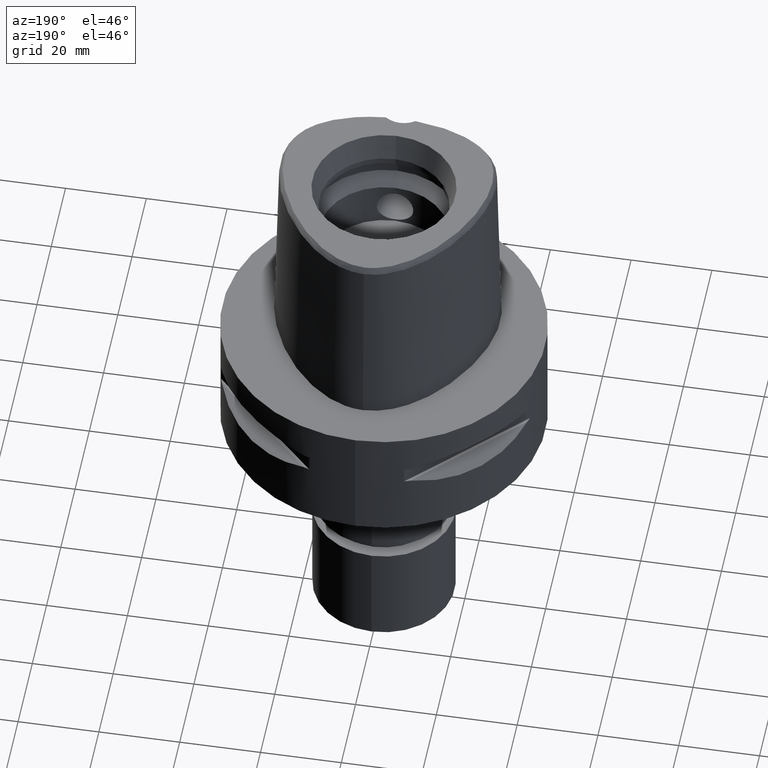
[diagram: clean part render]
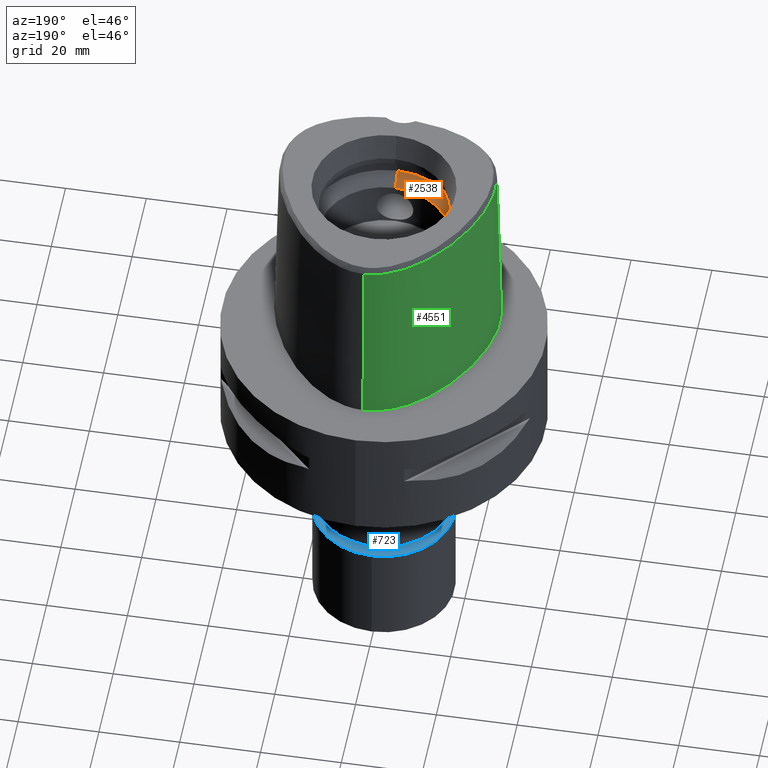
[diagram: same view with three faces highlighted in distinct colors, each labeled with its STEP entity id]
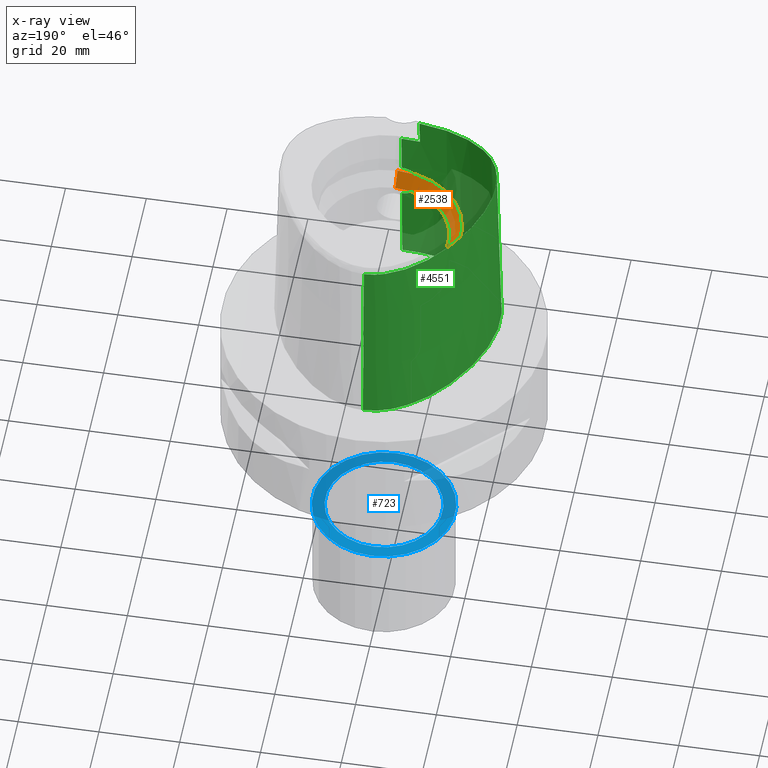
[diagram: x-ray of the same camera — body ghosted, the three highlighted faces saturated]
A machine part, auxiliary view with three faces highlighted in distinct colors.
The next image is the same camera in x-ray (body ghosted, the three faces saturated) — at least one of them is partly hidden behind the body in this view.
Their STEP definitions:

[orange] entity #2538 — the highlighted conical surface has half-angle 45 deg.
#25 = CIRCLE ( 'NONE', #4601, 16.00000000000000000 ) ;
#58 = EDGE_LOOP ( 'NONE', ( #1756, #4196, #2522, #1041 ) ) ;
#318 = VERTEX_POINT ( 'NONE', #4992 ) ;
#370 = VECTOR ( 'NONE', #5032, 1000.000000000000114 ) ;
#892 = LINE ( 'NONE', #3631, #3802 ) ;
#937 = EDGE_CURVE ( 'NONE', #2169, #4806, #25, .T. ) ;
#940 = CONICAL_SURFACE ( 'NONE', #3797, 17.50000000000000000, 0.7853981633972997312 ) ;
#1041 = ORIENTED_EDGE ( 'NONE', *, *, #2976, .F. ) ;
#1527 = DIRECTION ( 'NONE',  ( 0.0000000000000000000, 1.000000000000000000, 0.0000000000000000000 ) ) ;
#1726 = EDGE_CURVE ( 'NONE', #2169, #318, #2264, .T. ) ;
#1756 = ORIENTED_EDGE ( 'NONE', *, *, #937, .F. ) ;
#1982 = CARTESIAN_POINT ( 'NONE',  ( 0.0000000000000000000, 0.0000000000000000000, 31.50000000000000000 ) ) ;
#2108 = DIRECTION ( 'NONE',  ( 0.0000000000000000000, 0.0000000000000000000, -1.000000000000000000 ) ) ;
#2169 = VERTEX_POINT ( 'NONE', #4294 ) ;
#2264 = LINE ( 'NONE', #3142, #370 ) ;
#2522 = ORIENTED_EDGE ( 'NONE', *, *, #3392, .F. ) ;
#2538 = ADVANCED_FACE ( 'NONE', ( #4557 ), #940, .F. ) ;
#2599 = CARTESIAN_POINT ( 'NONE',  ( 0.0000000000000000000, -19.00000000000000000, 34.50000000000000000 ) ) ;
#2616 = CARTESIAN_POINT ( 'NONE',  ( 0.0000000000000000000, -16.00000000000000000, 31.50000000000000000 ) ) ;
#2631 = CIRCLE ( 'NONE', #3683, 19.00000000000000000 ) ;
#2645 = DIRECTION ( 'NONE',  ( 0.0000000000000000000, 0.0000000000000000000, 1.000000000000000000 ) ) ;
#2976 = EDGE_CURVE ( 'NONE', #4806, #3982, #892, .T. ) ;
#3142 = CARTESIAN_POINT ( 'NONE',  ( 0.0000000000000000000, 16.00000000000000000, 31.50000000000000000 ) ) ;
#3392 = EDGE_CURVE ( 'NONE', #3982, #318, #2631, .T. ) ;
#3412 = CARTESIAN_POINT ( 'NONE',  ( 0.0000000000000000000, 0.0000000000000000000, 33.00000000000000000 ) ) ;
#3559 = CARTESIAN_POINT ( 'NONE',  ( 0.0000000000000000000, 0.0000000000000000000, 34.50000000000000000 ) ) ;
#3631 = CARTESIAN_POINT ( 'NONE',  ( 0.0000000000000000000, -16.00000000000000000, 31.50000000000000000 ) ) ;
#3659 = DIRECTION ( 'NONE',  ( 0.0000000000000000000, -1.000000000000000000, 0.0000000000000000000 ) ) ;
#3683 = AXIS2_PLACEMENT_3D ( 'NONE', #3559, #2108, #3659 ) ;
#3797 = AXIS2_PLACEMENT_3D ( 'NONE', #3412, #2645, #4939 ) ;
#3802 = VECTOR ( 'NONE', #4709, 1000.000000000000114 ) ;
#3982 = VERTEX_POINT ( 'NONE', #2599 ) ;
#4196 = ORIENTED_EDGE ( 'NONE', *, *, #1726, .T. ) ;
#4294 = CARTESIAN_POINT ( 'NONE',  ( 0.0000000000000000000, 16.00000000000000000, 31.50000000000000000 ) ) ;
#4557 = FACE_OUTER_BOUND ( 'NONE', #58, .T. ) ;
#4601 = AXIS2_PLACEMENT_3D ( 'NONE', #1982, #5047, #1527 ) ;
#4709 = DIRECTION ( 'NONE',  ( 0.0000000000000000000, -0.7071067811865474617, 0.7071067811865474617 ) ) ;
#4806 = VERTEX_POINT ( 'NONE', #2616 ) ;
#4939 = DIRECTION ( 'NONE',  ( 0.0000000000000000000, 1.000000000000000000, 0.0000000000000000000 ) ) ;
#4992 = CARTESIAN_POINT ( 'NONE',  ( 0.0000000000000000000, 19.00000000000000000, 34.50000000000000000 ) ) ;
#5032 = DIRECTION ( 'NONE',  ( 0.0000000000000000000, 0.7071067811865474617, 0.7071067811865474617 ) ) ;
#5047 = DIRECTION ( 'NONE',  ( 0.0000000000000000000, 0.0000000000000000000, 1.000000000000000000 ) ) ;

[blue] entity #723 — the highlighted planar face has unit normal (0, 0, -1).
#50 = CARTESIAN_POINT ( 'NONE',  ( 0.0000000000000000000, 14.50000000000000000, 0.0000000000000000000 ) ) ;
#143 = CARTESIAN_POINT ( 'NONE',  ( 0.0000000000000000000, -14.50000000000000000, 0.0000000000000000000 ) ) ;
#276 = DIRECTION ( 'NONE',  ( 0.0000000000000000000, 0.0000000000000000000, -1.000000000000000000 ) ) ;
#510 = EDGE_CURVE ( 'NONE', #3402, #3735, #3394, .T. ) ;
#604 = ORIENTED_EDGE ( 'NONE', *, *, #1532, .F. ) ;
#723 = ADVANCED_FACE ( 'NONE', ( #2535, #4012 ), #2914, .F. ) ;
#841 = EDGE_CURVE ( 'NONE', #3735, #3402, #1427, .T. ) ;
#999 = DIRECTION ( 'NONE',  ( 0.0000000000000000000, 1.000000000000000000, 0.0000000000000000000 ) ) ;
#1043 = EDGE_CURVE ( 'NONE', #1404, #4744, #3888, .T. ) ;
#1404 = VERTEX_POINT ( 'NONE', #2602 ) ;
#1427 = CIRCLE ( 'NONE', #2899, 14.50000000000000000 ) ;
#1532 = EDGE_CURVE ( 'NONE', #4744, #1404, #1602, .T. ) ;
#1584 = DIRECTION ( 'NONE',  ( 0.0000000000000000000, -1.000000000000000000, 0.0000000000000000000 ) ) ;
#1602 = CIRCLE ( 'NONE', #3074, 17.64999999999999858 ) ;
#1613 = DIRECTION ( 'NONE',  ( 0.0000000000000000000, 0.0000000000000000000, 1.000000000000000000 ) ) ;
#1665 = CARTESIAN_POINT ( 'NONE',  ( 0.0000000000000000000, 0.0000000000000000000, 0.0000000000000000000 ) ) ;
#2041 = EDGE_LOOP ( 'NONE', ( #3639, #3674 ) ) ;
#2134 = CARTESIAN_POINT ( 'NONE',  ( 0.0000000000000000000, 0.0000000000000000000, 0.0000000000000000000 ) ) ;
#2315 = CARTESIAN_POINT ( 'NONE',  ( 0.0000000000000000000, 0.0000000000000000000, 0.0000000000000000000 ) ) ;
#2361 = CARTESIAN_POINT ( 'NONE',  ( 0.0000000000000000000, 17.64999999999999858, 0.0000000000000000000 ) ) ;
#2535 = FACE_OUTER_BOUND ( 'NONE', #3265, .T. ) ;
#2573 = ORIENTED_EDGE ( 'NONE', *, *, #1043, .F. ) ;
#2602 = CARTESIAN_POINT ( 'NONE',  ( 0.0000000000000000000, -17.64999999999999858, 0.0000000000000000000 ) ) ;
#2757 = DIRECTION ( 'NONE',  ( 0.0000000000000000000, 1.000000000000000000, 0.0000000000000000000 ) ) ;
#2899 = AXIS2_PLACEMENT_3D ( 'NONE', #3828, #3543, #2757 ) ;
#2914 = PLANE ( 'NONE',  #3227 ) ;
#3074 = AXIS2_PLACEMENT_3D ( 'NONE', #2134, #276, #999 ) ;
#3227 = AXIS2_PLACEMENT_3D ( 'NONE', #1665, #3656, #4787 ) ;
#3265 = EDGE_LOOP ( 'NONE', ( #604, #2573 ) ) ;
#3394 = CIRCLE ( 'NONE', #4915, 14.50000000000000000 ) ;
#3402 = VERTEX_POINT ( 'NONE', #143 ) ;
#3543 = DIRECTION ( 'NONE',  ( 0.0000000000000000000, 0.0000000000000000000, 1.000000000000000000 ) ) ;
#3639 = ORIENTED_EDGE ( 'NONE', *, *, #841, .F. ) ;
#3656 = DIRECTION ( 'NONE',  ( 0.0000000000000000000, 0.0000000000000000000, -1.000000000000000000 ) ) ;
#3674 = ORIENTED_EDGE ( 'NONE', *, *, #510, .F. ) ;
#3735 = VERTEX_POINT ( 'NONE', #50 ) ;
#3828 = CARTESIAN_POINT ( 'NONE',  ( 0.0000000000000000000, 0.0000000000000000000, 0.0000000000000000000 ) ) ;
#3888 = CIRCLE ( 'NONE', #4766, 17.64999999999999858 ) ;
#4012 = FACE_BOUND ( 'NONE', #2041, .T. ) ;
#4341 = DIRECTION ( 'NONE',  ( 0.0000000000000000000, 0.0000000000000000000, -1.000000000000000000 ) ) ;
#4698 = CARTESIAN_POINT ( 'NONE',  ( 0.0000000000000000000, 0.0000000000000000000, 0.0000000000000000000 ) ) ;
#4723 = DIRECTION ( 'NONE',  ( 0.0000000000000000000, -1.000000000000000000, 0.0000000000000000000 ) ) ;
#4744 = VERTEX_POINT ( 'NONE', #2361 ) ;
#4766 = AXIS2_PLACEMENT_3D ( 'NONE', #4698, #4341, #4723 ) ;
#4787 = DIRECTION ( 'NONE',  ( 0.0000000000000000000, -1.000000000000000000, 0.0000000000000000000 ) ) ;
#4915 = AXIS2_PLACEMENT_3D ( 'NONE', #2315, #1613, #1584 ) ;

[green] entity #4551 — the highlighted face is a freeform B-spline surface patch.
#37 = CARTESIAN_POINT ( 'NONE',  ( -1.722296434335556459, -24.81387508079694371, 29.21144792399117307 ) ) ;
#43 = CARTESIAN_POINT ( 'NONE',  ( -0.6821018004462000572, 28.41983321146999941, 47.45113844606000697 ) ) ;
#66 = CARTESIAN_POINT ( 'NONE',  ( -0.7039271474416999297, 28.82397290343000051, 31.32395413760000125 ) ) ;
#83 = CARTESIAN_POINT ( 'NONE',  ( -3.205390121191868058, -24.76204090357538945, 28.22925085367149123 ) ) ;
#86 = CARTESIAN_POINT ( 'NONE',  ( -26.38518529508765553, -1.941591755871336256, 46.52070903171014749 ) ) ;
#90 = CARTESIAN_POINT ( 'NONE',  ( -27.87808443105999601, -5.337383714067000184, -0.9304144793345000553 ) ) ;
#117 = CARTESIAN_POINT ( 'NONE',  ( -26.66520868297000035, -5.367805582596999692, 47.45113844606000697 ) ) ;
#162 = CARTESIAN_POINT ( 'NONE',  ( -1.888484788635112821, -25.01654759054914834, 20.86028587658107014 ) ) ;
#164 = CARTESIAN_POINT ( 'NONE',  ( -0.9629684636075657167, 28.41206041874228561, 46.52070903171014749 ) ) ;
#168 = CARTESIAN_POINT ( 'NONE',  ( -6.695047936513000231, -25.26858194627000032, -0.9304144793345000553 ) ) ;
#188 = CARTESIAN_POINT ( 'NONE',  ( -4.212409792926641749, -24.80756021599265893, 23.28005703556032202 ) ) ;
#214 = CARTESIAN_POINT ( 'NONE',  ( -3.900686180406077508, -24.73222278675475039, 27.34720371156312879 ) ) ;
#221 = CARTESIAN_POINT ( 'NONE',  ( -11.64093423979000086, -23.76831843700999869, 15.19676982913000174 ) ) ;
#236 = CARTESIAN_POINT ( 'NONE',  ( -4.201380620708010660, -24.72153596869751624, 26.74670933510338244 ) ) ;
#243 = CARTESIAN_POINT ( 'NONE',  ( -26.73375370627000081, -11.30662581566000036, 15.19676982913000174 ) ) ;
#254 = CARTESIAN_POINT ( 'NONE',  ( -24.77458489266242836, -16.12173825018081885, 2.094819869652431166E-06 ) ) ;
#268 = CARTESIAN_POINT ( 'NONE',  ( -3.994669282579147662, -24.83794919743794694, 22.82040209576782530 ) ) ;
#274 = CARTESIAN_POINT ( 'NONE',  ( -22.86810881909999793, -17.21714036338000042, 31.32395413760000125 ) ) ;
#356 = CARTESIAN_POINT ( 'NONE',  ( -5.572548441001623942, -24.09475885057824129, 46.52070903171014749 ) ) ;
#437 = CARTESIAN_POINT ( 'NONE',  ( -9.105791465399001083, 26.46675914463000012, 15.19676982913000174 ) ) ;
#446 = CARTESIAN_POINT ( 'NONE',  ( -1.192047609672000055E-11, 28.41206021534999593, 46.52071719450999154 ) ) ;
#455 = CARTESIAN_POINT ( 'NONE',  ( -1.150414049180625620, -24.82628098737378153, 29.40485804970413852 ) ) ;
#466 = CARTESIAN_POINT ( 'NONE',  ( -4.851912750261540134E-09, -24.66214466420160178, 36.51666702990944913 ) ) ;
#479 = CARTESIAN_POINT ( 'NONE',  ( -22.59428085107230189, -16.95173346410183868, 46.52070903171014749 ) ) ;
#484 = CARTESIAN_POINT ( 'NONE',  ( -16.83227270575000389, 18.76477912984999818, 47.45113844606000697 ) ) ;
#513 = CARTESIAN_POINT ( 'NONE',  ( -27.06950059899999772, -5.357664959754000478, 31.32395413760000125 ) ) ;
#533 = CARTESIAN_POINT ( 'NONE',  ( -1.611811031578928910, -24.81663505490543997, 29.25526689574252259 ) ) ;
#538 = CARTESIAN_POINT ( 'NONE',  ( 0.5902542486776999331, 29.18556700309000007, 15.19676982913000174 ) ) ;
#554 = CARTESIAN_POINT ( 'NONE',  ( -3.972636365745899401, -24.72937778087138128, 27.22257177644721082 ) ) ;
#555 = CARTESIAN_POINT ( 'NONE',  ( -21.32746397970085184, 12.31340991043660615, 46.52070903171014749 ) ) ;
#559 = CARTESIAN_POINT ( 'NONE',  ( -2.354156828567999682, -24.81494221266999745, 31.32395413760000125 ) ) ;
#561 = CARTESIAN_POINT ( 'NONE',  ( 1.372734075386999954E-14, -24.83629963747999980, 29.55000000000000071 ) ) ;
#573 = CARTESIAN_POINT ( 'NONE',  ( -4.515545264917624202, -24.72200876241189249, 25.57765437788227203 ) ) ;
#578 = CARTESIAN_POINT ( 'NONE',  ( -27.12297207986999936, -11.41745865541999905, -0.9304144793345000553 ) ) ;
#600 = CARTESIAN_POINT ( 'NONE',  ( -4.304263127651236864, -24.79330400446726657, 23.52125164125747503 ) ) ;
#628 = CARTESIAN_POINT ( 'NONE',  ( -3.265305598819550514, -24.91820214815111711, 21.83126415608266768 ) ) ;
#630 = CARTESIAN_POINT ( 'NONE',  ( -4.472216406693000579, -24.20008985674000357, 46.52070903171000538 ) ) ;
#634 = CARTESIAN_POINT ( 'NONE',  ( 0.8392169872707000433, -24.78463084240999947, 31.32395413760000125 ) ) ;
#636 = LINE ( 'NONE', #4936, #1689 ) ;
#642 = CARTESIAN_POINT ( 'NONE',  ( -26.34912732414720082, -13.39455076017427793, 2.094819869652431166E-06 ) ) ;
#650 = CARTESIAN_POINT ( 'NONE',  ( -3.310528231614960681, -24.91386642802240203, 21.87824841565021217 ) ) ;
#657 = CARTESIAN_POINT ( 'NONE',  ( -26.50159628496000153, -8.602222732056999277, 47.45113844606000697 ) ) ;
#665 = B_SPLINE_CURVE_WITH_KNOTS ( 'NONE', 3,
 ( #737, #356, #1920, #3486, #5014, #918, #4056, #479, #3603, #970, #2047, #2151, #3198, #1737, #86, #2818, #3295, #555, #2126, #4835, #4738, #4426, #4375, #164, #1329 ),
 .UNSPECIFIED., .F., .F.,
 ( 4, 1, 1, 1, 1, 1, 1, 1, 1, 1, 1, 1, 1, 1, 1, 1, 1, 1, 1, 1, 1, 1, 4 ),
 ( 0.0000000000000000000, 0.03735859270278889949, 0.08111502030725048495, 0.1248714479116071335, 0.1686278755159637821, 0.2123843031204253606, 0.2561407307247819953, 0.2780189445269604098, 0.2998971583291386578, 0.3217753721314219884, 0.3436535859336003473, 0.3874100135379570098, 0.4311664411423136722, 0.4749228687466702792, 0.5186792963511318577, 0.5624357239554885757, 0.6499485791643069277, 0.7374614343730200305, 0.8249742895818383825, 0.8687307171861949895, 0.9124871447906146571, 0.9562435723950027944, 1.000000000000000000 ),
 .UNSPECIFIED. ) ;
#697 = EDGE_CURVE ( 'NONE', #3267, #1176, #665, .T. ) ;
#737 = CARTESIAN_POINT ( 'NONE',  ( -4.472216406693000579, -24.20008985674000357, 46.52070903171000538 ) ) ;
#743 = CARTESIAN_POINT ( 'NONE',  ( -1.192047609672000055E-11, 28.41206021534999593, 46.52071719450999154 ) ) ;
#749 = CARTESIAN_POINT ( 'NONE',  ( -4.602965076336000827, -24.35127131300999892, 40.00000000000000000 ) ) ;
#805 = CARTESIAN_POINT ( 'NONE',  ( -4.560196949595972882, -24.30012304335829398, 42.17356967723666372 ) ) ;
#811 = CARTESIAN_POINT ( 'NONE',  ( -2.404910036726957134, -24.79321437770926551, 28.86288751849653167 ) ) ;
#836 = CARTESIAN_POINT ( 'NONE',  ( -2.520279592225764365, -24.78912363236073091, 28.78824203054437447 ) ) ;
#843 = CARTESIAN_POINT ( 'NONE',  ( -21.65785138254999964, 12.50416150512999991, 31.32395413760000125 ) ) ;
#867 = CARTESIAN_POINT ( 'NONE',  ( -1.984502176493348591, -24.80676203802943292, 29.09712838305476978 ) ) ;
#889 = CARTESIAN_POINT ( 'NONE',  ( -2.352923008994420417, -24.79499099983765475, 28.89459205334127390 ) ) ;
#894 = CARTESIAN_POINT ( 'NONE',  ( -24.10679983690999961, 6.379205539831000138, 47.45113844606000697 ) ) ;
#895 = ORIENTED_EDGE ( 'NONE', *, *, #3915, .F. ) ;
#918 = CARTESIAN_POINT ( 'NONE',  ( -17.99241701171345298, -20.42933791837108615, 46.52070903171014749 ) ) ;
#945 = CARTESIAN_POINT ( 'NONE',  ( -2.224291573387941590, -24.99814500580177778, 21.02832322413054555 ) ) ;
#969 = CARTESIAN_POINT ( 'NONE',  ( -2.039991806424828358, -25.00858519317915452, 20.93235562228259994 ) ) ;
#970 = CARTESIAN_POINT ( 'NONE',  ( -24.62887906780445135, -14.21948995895579948, 46.52070903171014749 ) ) ;
#973 = CARTESIAN_POINT ( 'NONE',  ( 0.5595577616574000102, -24.78951189190999926, 31.32395413760000125 ) ) ;
#989 = CARTESIAN_POINT ( 'NONE',  ( -3.797137772289171487, -24.86229941254662279, 22.49313827486259854 ) ) ;
#996 = CARTESIAN_POINT ( 'NONE',  ( -11.74634101485999871, -24.15815461099999695, -0.9304144793345000553 ) ) ;
#1016 = CARTESIAN_POINT ( 'NONE',  ( -3.245740051672679094, -24.92006245179830159, 21.81130774429478691 ) ) ;
#1023 = CARTESIAN_POINT ( 'NONE',  ( -18.36798846916000016, -21.11924012296000086, 15.19676982913000174 ) ) ;
#1031 = CARTESIAN_POINT ( 'NONE',  ( -13.21796077085598853, 24.04386714781985290, 2.094819869652431166E-06 ) ) ;
#1045 = CARTESIAN_POINT ( 'NONE',  ( -4.198926685529646541, -24.72160612811942570, 26.75259212959132782 ) ) ;
#1051 = CARTESIAN_POINT ( 'NONE',  ( -22.57751558785000157, -16.93548378530000065, 47.45113844606000697 ) ) ;
#1054 = CARTESIAN_POINT ( 'NONE',  ( -2.392065149245000541E-12, -25.06378435148999984, 20.44999999999999929 ) ) ;
#1076 = CARTESIAN_POINT ( 'NONE',  ( -2.393548608051999871, -25.62160468843000061, -0.9304144793345000553 ) ) ;
#1085 = CARTESIAN_POINT ( 'NONE',  ( -22.33885461213397861, 12.89734372370515914, 2.094819869652431166E-06 ) ) ;
#1160 = CARTESIAN_POINT ( 'NONE',  ( -21.42129056182097457, -19.59889644248153218, 2.094819869652431166E-06 ) ) ;
#1174 = CARTESIAN_POINT ( 'NONE',  ( -2.392065149245000541E-12, -25.06378435148999984, 20.44999999999999929 ) ) ;
#1176 = VERTEX_POINT ( 'NONE', #446 ) ;
#1186 = CARTESIAN_POINT ( 'NONE',  ( -11.74025984106811649, -24.13566401186329102, 2.094819869652431166E-06 ) ) ;
#1207 = CARTESIAN_POINT ( 'NONE',  ( -2.249867388151588266, -24.79844751147266990, 28.95562542824130503 ) ) ;
#1229 = CARTESIAN_POINT ( 'NONE',  ( -2.492689275654131009, -24.79011428768476932, 28.80645659143012693 ) ) ;
#1235 = CARTESIAN_POINT ( 'NONE',  ( -17.77103258632999783, 19.53703864451000172, -0.9304144793345000553 ) ) ;
#1255 = CARTESIAN_POINT ( 'NONE',  ( -3.172181247291940398, -24.76348918694393930, 28.26195868750457763 ) ) ;
#1261 = CARTESIAN_POINT ( 'NONE',  ( -21.30723583494999929, 12.30173104243000104, 47.45113844606000697 ) ) ;
#1283 = CARTESIAN_POINT ( 'NONE',  ( -1.676286854296210382, -24.81504355059169953, 29.23004141242361342 ) ) ;
#1290 = CARTESIAN_POINT ( 'NONE',  ( -26.79474625778999908, 1.906447387348999989, -0.9304144793345000553 ) ) ;
#1310 = CARTESIAN_POINT ( 'NONE',  ( 0.5727458549745999550, 28.78269979246000077, 31.32395413760000125 ) ) ;
#1327 = CARTESIAN_POINT ( 'NONE',  ( -2.349040166744138070, -24.99044712210573138, 21.10040994412159066 ) ) ;
#1329 = CARTESIAN_POINT ( 'NONE',  ( -1.192047609672000055E-11, 28.41206021534999593, 46.52071719450999154 ) ) ;
#1334 = CARTESIAN_POINT ( 'NONE',  ( -25.23075706188000211, 6.836210430591999732, -0.9304144793345000553 ) ) ;
#1355 = CARTESIAN_POINT ( 'NONE',  ( -1.754298049354609867, -25.02308377135079098, 20.80178576367026722 ) ) ;
#1361 = CARTESIAN_POINT ( 'NONE',  ( -24.14246365494000202, -15.65707285667999926, 31.32395413760000125 ) ) ;
#1369 = CARTESIAN_POINT ( 'NONE',  ( -17.75297947105729790, 19.52218746656008719, 2.094819869652431166E-06 ) ) ;
#1377 = CARTESIAN_POINT ( 'NONE',  ( -1.165430911967659577, -25.05044697737377746, 20.55812161079838418 ) ) ;
#1382 = CARTESIAN_POINT ( 'NONE',  ( -20.94550185134000131, -18.97246394888000154, 31.32395413760000125 ) ) ;
#1400 = CARTESIAN_POINT ( 'NONE',  ( -3.702709904148360209, -24.87336589807969744, 22.35148037005134114 ) ) ;
#1406 = CARTESIAN_POINT ( 'NONE',  ( -2.334460938825000387, -24.41161097479999853, 47.45113844606000697 ) ) ;
#1407 = CARTESIAN_POINT ( 'NONE',  ( -4.602965076336000827, -24.35127131300999892, 40.00000000000000000 ) ) ;
#1416 = CARTESIAN_POINT ( 'NONE',  ( -3.149084863199506756, 29.34015619852094048, 2.094819869652431166E-06 ) ) ;
#1426 = CARTESIAN_POINT ( 'NONE',  ( -4.256460948041315362, -24.80084657812260218, 23.39133378591558809 ) ) ;
#1433 = CARTESIAN_POINT ( 'NONE',  ( -26.37046814545999851, -13.40391019821999841, -0.9304144793345000553 ) ) ;
#1460 = CARTESIAN_POINT ( 'NONE',  ( -25.26074793572000132, -12.91722051562000040, 47.45113844606000697 ) ) ;
#1461 = B_SPLINE_CURVE_WITH_KNOTS ( 'NONE', 3,
 ( #3645, #466, #1648, #3209 ),
 .UNSPECIFIED., .F., .F.,
 ( 4, 4 ),
 ( 0.0000000000000000000, 1.000000000000000000 ),
 .UNSPECIFIED. ) ;
#1506 = ORIENTED_EDGE ( 'NONE', *, *, #1662, .F. ) ;
#1539 = CARTESIAN_POINT ( 'NONE',  ( -1.924424295540000113E-11, -25.57499999999999929, 1.155372094292999947E-13 ) ) ;
#1617 = CARTESIAN_POINT ( 'NONE',  ( -9.316733117299998312, 26.81182150644999851, -0.9304144793345000553 ) ) ;
#1618 = VERTEX_POINT ( 'NONE', #561 ) ;
#1631 = VERTEX_POINT ( 'NONE', #1407 ) ;
#1634 = CARTESIAN_POINT ( 'NONE',  ( -3.125212091966714567, -24.76551320166746706, 28.30726214217371961 ) ) ;
#1640 = CARTESIAN_POINT ( 'NONE',  ( -26.01411826807999716, 1.699187959254000013, 31.32395413760000125 ) ) ;
#1648 = CARTESIAN_POINT ( 'NONE',  ( -4.860711517212901788E-09, -24.74922215084347243, 33.03333351495476222 ) ) ;
#1662 = EDGE_CURVE ( 'NONE', #4830, #2564, #636, .T. ) ;
#1663 = CARTESIAN_POINT ( 'NONE',  ( -3.211065830876046245, -24.76179211193617746, 28.22361125334782628 ) ) ;
#1669 = CARTESIAN_POINT ( 'NONE',  ( -27.47379251503000219, -5.347524336910000287, 15.19676982913000174 ) ) ;
#1689 = VECTOR ( 'NONE', #4062, 1000.000000000000000 ) ;
#1719 = CARTESIAN_POINT ( 'NONE',  ( -2.892852102124000346, 28.17405737570999946, 47.45113844606000697 ) ) ;
#1735 = CARTESIAN_POINT ( 'NONE',  ( -1.843442154717177539, -25.01881181296639411, 20.83994273181361834 ) ) ;
#1737 = CARTESIAN_POINT ( 'NONE',  ( -26.68853359099258782, -5.367220537272750391, 46.52070903171014749 ) ) ;
#1741 = CARTESIAN_POINT ( 'NONE',  ( -21.19046239193000147, -19.29498367012000415, 15.19676982913000174 ) ) ;
#1759 = CARTESIAN_POINT ( 'NONE',  ( -3.459328791567589878, -24.75086403572737126, 27.97515479135392980 ) ) ;
#1780 = B_SPLINE_CURVE_WITH_KNOTS ( 'NONE', 3,
 ( #2373, #2703, #1932, #749 ),
 .UNSPECIFIED., .F., .F.,
 ( 4, 4 ),
 ( 0.0000000000000000000, 1.000000000000000000 ),
 .UNSPECIFIED. ) ;
#1783 = CARTESIAN_POINT ( 'NONE',  ( -4.544092989177466180, -24.72741046393034026, 25.25074796833678548 ) ) ;
#1789 = CARTESIAN_POINT ( 'NONE',  ( -20.70054131075000114, -18.64994422763999893, 47.45113844606000697 ) ) ;
#1797 = CARTESIAN_POINT ( 'NONE',  ( 4.354908547475000121E-11, 29.57499999998999840, 1.090979158864999866E-13 ) ) ;
#1807 = CARTESIAN_POINT ( 'NONE',  ( -4.409270466778648867, -24.71744676443887556, 26.16158622814597123 ) ) ;
#1814 = CARTESIAN_POINT ( 'NONE',  ( -25.30843714803000211, -14.61183299997000162, 15.19676982913000174 ) ) ;
#1823 = CARTESIAN_POINT ( 'NONE',  ( -23.43253024973375176, -17.76420406497843274, 2.094819869652431166E-06 ) ) ;
#1833 = CARTESIAN_POINT ( 'NONE',  ( -2.978031838724320757, -24.94531787462517869, 21.54303487591699096 ) ) ;
#1839 = CARTESIAN_POINT ( 'NONE',  ( -14.86558287166999826, -21.85772792644999640, 47.45113844606000697 ) ) ;
#1920 = CARTESIAN_POINT ( 'NONE',  ( -7.937300651753801617, -23.78071178104227457, 46.52070903171014749 ) ) ;
#1932 = CARTESIAN_POINT ( 'NONE',  ( -3.083106526351037324, -24.50056604430952234, 40.00000010702065367 ) ) ;
#1949 = CARTESIAN_POINT ( 'NONE',  ( -6.691850456626842636, -25.24546869795837267, 2.094819869652431166E-06 ) ) ;
#1978 = EDGE_CURVE ( 'NONE', #1618, #4830, #2289, .T. ) ;
#1984 = CARTESIAN_POINT ( 'NONE',  ( -4.472216406693000579, -24.20008985674000357, 46.52070903171000538 ) ) ;
#1990 = CARTESIAN_POINT ( 'NONE',  ( -1.003044292495311574, -24.82866638025622308, 29.44055839642713579 ) ) ;
#1996 = CARTESIAN_POINT ( 'NONE',  ( -12.96695409940000054, 23.75598709824999588, 15.19676982913000174 ) ) ;
#2025 = CARTESIAN_POINT ( 'NONE',  ( -2.979937750256000051, 28.57037856175000101, 31.32395413760000125 ) ) ;
#2047 = CARTESIAN_POINT ( 'NONE',  ( -25.28208905154637876, -12.92658008283046200, 46.52070903171014749 ) ) ;
#2052 = CARTESIAN_POINT ( 'NONE',  ( -26.76156705504000044, -1.884109320324999892, 31.32395413760000125 ) ) ;
#2069 = ORIENTED_EDGE ( 'NONE', *, *, #697, .T. ) ;
#2081 = CARTESIAN_POINT ( 'NONE',  ( -24.85610465356000276, 6.683875467004999571, 15.19676982913000174 ) ) ;
#2103 = CARTESIAN_POINT ( 'NONE',  ( -1.858668925437444885, -24.81033890557711530, 29.15501574767494475 ) ) ;
#2109 = CARTESIAN_POINT ( 'NONE',  ( -12.43420517227000133, 23.14497629658000122, 47.45113844606000697 ) ) ;
#2124 = CARTESIAN_POINT ( 'NONE',  ( -4.550009659928393901, -24.73228693208369222, 25.03285394944880338 ) ) ;
#2126 = CARTESIAN_POINT ( 'NONE',  ( -16.85032607016435691, 18.77963051275330031, 46.52070903171014749 ) ) ;
#2130 = CARTESIAN_POINT ( 'NONE',  ( -15.30623779601999956, -22.98697010193000168, -0.9304144793345000553 ) ) ;
#2141 = EDGE_CURVE ( 'NONE', #3267, #1631, #4042, .T. ) ;
#2150 = CARTESIAN_POINT ( 'NONE',  ( -4.192714366872920095, -24.72178541175452793, 26.76740225217007563 ) ) ;
#2151 = CARTESIAN_POINT ( 'NONE',  ( -25.97777222568544175, -11.09135444108358648, 46.52070903171014749 ) ) ;
#2157 = CARTESIAN_POINT ( 'NONE',  ( 0.5548736449244000557, -24.38637835827999822, 47.45113844606000697 ) ) ;
#2164 = CARTESIAN_POINT ( 'NONE',  ( -25.20914245119653074, 6.827421855213088087, 2.094819869652431166E-06 ) ) ;
#2176 = CARTESIAN_POINT ( 'NONE',  ( -3.864901861996108412, -24.85421915751040345, 22.59833191710548661 ) ) ;
#2201 = CARTESIAN_POINT ( 'NONE',  ( -3.957281473797835236, -24.84276546235788174, 22.75305380327887406 ) ) ;
#2222 = ORIENTED_EDGE ( 'NONE', *, *, #4421, .T. ) ;
#2226 = CARTESIAN_POINT ( 'NONE',  ( -4.547910621292599487, -24.72974527037217740, 25.14250056300025093 ) ) ;
#2232 = CARTESIAN_POINT ( 'NONE',  ( -24.46791223473999821, -15.89630654061999948, 15.19676982913000174 ) ) ;
#2261 = CARTESIAN_POINT ( 'NONE',  ( 4.354908547475000121E-11, 29.57499999998999840, 1.090979158864999866E-13 ) ) ;
#2272 = CARTESIAN_POINT ( 'NONE',  ( -27.68378748623397811, -8.751933587140674931, 2.094819869652431166E-06 ) ) ;
#2289 = B_SPLINE_CURVE_WITH_KNOTS ( 'NONE', 3,
 ( #2386, #2843, #4034, #1990, #455, #4706, #4324, #533, #1283, #3168, #37, #3271, #2103, #867, #4373, #1207, #889, #811, #2767, #1229, #2790, #836, #2413, #4735, #3579, #2466, #1634, #1255, #2815, #83, #1663, #1759, #4424, #214, #554, #4470, #4099, #3727, #4522, #4901, #2150, #1045, #236, #4854, #1807, #2517, #573, #2557, #1783, #2226, #4054, #2124, #2534, #3343, #3701, #2886, #3370, #600, #1426, #2585, #3320, #188, #2934, #3749, #3774, #268, #2201, #2911, #2176, #4875, #2985, #989, #2608, #1400, #2958, #4495, #4146, #650, #628, #1016, #3677, #4123, #1833, #4808, #1327, #945, #969, #4072, #162, #1735, #3293, #4833, #1355, #4451, #1377, #4170, #1174 ),
 .UNSPECIFIED., .F., .F.,
 ( 4, 2, 2, 1, 1, 1, 2, 2, 2, 2, 1, 1, 2, 2, 2, 1, 1, 1, 2, 2, 2, 2, 2, 1, 1, 2, 2, 2, 2, 1, 2, 2, 2, 2, 1, 1, 1, 2, 2, 2, 2, 1, 1, 2, 2, 2, 1, 1, 1, 2, 2, 2, 2, 2, 1, 1, 2, 2, 4 ),
 ( 0.0000000000000000000, 0.06249999999999783507, 0.09374999999999675260, 0.1093749999999962114, 0.1171874999999958228, 0.1210937499999954897, 0.1230468749999953232, 0.1249999999999951567, 0.1562499999999918954, 0.1718749999999902855, 0.1796874999999894806, 0.1835937499999890643, 0.1855468749999890088, 0.1874999999999889810, 0.2187499999999906186, 0.2343749999999914513, 0.2421874999999918121, 0.2460937499999920064, 0.2480468749999917843, 0.2499999999999916178, 0.3124999999999886757, 0.3437499999999875655, 0.3593749999999869549, 0.3671874999999870659, 0.3710937499999867328, 0.3730468749999870104, 0.3749999999999872879, 0.4375000000000018319, 0.4687500000000087153, 0.4843750000000126010, 0.4921875000000141553, 0.5000000000000156541, 0.5625000000000295319, 0.5937500000000365263, 0.6093750000000399680, 0.6171875000000416334, 0.6210937500000428546, 0.6230468750000435207, 0.6250000000000440759, 0.6562500000000445199, 0.6718750000000447420, 0.6796875000000446310, 0.6835937500000442979, 0.6855468750000440759, 0.6875000000000438538, 0.7187500000000411893, 0.7343750000000398570, 0.7421875000000390799, 0.7460937500000390799, 0.7480468750000388578, 0.7500000000000385247, 0.8125000000000285327, 0.8437500000000235367, 0.8593750000000212053, 0.8671875000000197620, 0.8710937500000189848, 0.8730468750000186517, 0.8750000000000182077, 1.000000000000000000 ),
 .UNSPECIFIED. ) ;
#2312 = VECTOR ( 'NONE', #3843, 1000.000000000000000 ) ;
#2373 = CARTESIAN_POINT ( 'NONE',  ( -1.451045074373000022E-08, -24.57504746727000011, 40.00000005214000254 ) ) ;
#2386 = CARTESIAN_POINT ( 'NONE',  ( 1.372734075386999954E-14, -24.83629963747999980, 29.55000000000000071 ) ) ;
#2413 = CARTESIAN_POINT ( 'NONE',  ( -2.652045588672493182, -24.78435656486182737, 28.70018943685095536 ) ) ;
#2420 = CARTESIAN_POINT ( 'NONE',  ( -26.40443226294000212, 1.802817673300999957, 15.19676982913000174 ) ) ;
#2447 = CARTESIAN_POINT ( 'NONE',  ( 0.5552374612716000080, 28.37983258182000057, 47.45113844606000697 ) ) ;
#2462 = VERTEX_POINT ( 'NONE', #4487 ) ;
#2466 = CARTESIAN_POINT ( 'NONE',  ( -3.029613744918489004, -24.76954858878827537, 28.39612668127803730 ) ) ;
#2472 = CARTESIAN_POINT ( 'NONE',  ( 0.8850788443532999761, 29.16624661374000027, 15.19676982913000174 ) ) ;
#2501 = CARTESIAN_POINT ( 'NONE',  ( -5.957940678051000027, 27.62557846398999928, 31.32395413760000125 ) ) ;
#2502 = ORIENTED_EDGE ( 'NONE', *, *, #4145, .T. ) ;
#2517 = CARTESIAN_POINT ( 'NONE',  ( -4.494536868532353679, -24.72037511897801210, 25.72370608057387287 ) ) ;
#2521 = FACE_OUTER_BOUND ( 'NONE', #3808, .T. ) ;
#2534 = CARTESIAN_POINT ( 'NONE',  ( -4.549921019085021001, -24.74001865967040814, 24.72536366591950951 ) ) ;
#2540 = CARTESIAN_POINT ( 'NONE',  ( -26.34453533266999870, -11.19579297591000078, 31.32395413760000125 ) ) ;
#2557 = CARTESIAN_POINT ( 'NONE',  ( -4.536359085940564029, -24.72544551544397251, 25.35955479186921124 ) ) ;
#2563 = CARTESIAN_POINT ( 'NONE',  ( 0.8532670503994000955, -25.59082387536999903, -0.9304144793345000553 ) ) ;
#2564 = VERTEX_POINT ( 'NONE', #2596 ) ;
#2585 = CARTESIAN_POINT ( 'NONE',  ( -4.231109674115414165, -24.80473516988229221, 23.32640847146424079 ) ) ;
#2592 = CARTESIAN_POINT ( 'NONE',  ( -11.43012068963999894, -22.98864608901000395, 47.45113844606000697 ) ) ;
#2596 = CARTESIAN_POINT ( 'NONE',  ( -1.924424295540000113E-11, -25.57499999999999929, 1.155372094292999947E-13 ) ) ;
#2608 = CARTESIAN_POINT ( 'NONE',  ( -3.790579096131128090, -24.86307050843588939, 22.48323682071580976 ) ) ;
#2614 = CARTESIAN_POINT ( 'NONE',  ( -21.43542293252000164, -19.61750339137000054, -0.9304144793345000553 ) ) ;
#2649 = CARTESIAN_POINT ( 'NONE',  ( -1.049694954250744772, 29.57499994764077300, 2.094819869652431166E-06 ) ) ;
#2703 = CARTESIAN_POINT ( 'NONE',  ( -1.541632273122070851, -24.57506718850527250, 40.00000010702065367 ) ) ;
#2767 = CARTESIAN_POINT ( 'NONE',  ( -2.466259342609951055, -24.79105701084872138, 28.82372012011191487 ) ) ;
#2790 = CARTESIAN_POINT ( 'NONE',  ( -2.510338385227629310, -24.78948177504956618, 28.79484028636987603 ) ) ;
#2795 = CARTESIAN_POINT ( 'NONE',  ( -8.894849813496998436, 26.12169678280999818, 31.32395413760000125 ) ) ;
#2815 = CARTESIAN_POINT ( 'NONE',  ( -3.192130741524555670, -24.76262039752747413, 28.24235843700019544 ) ) ;
#2818 = CARTESIAN_POINT ( 'NONE',  ( -25.64632274977834925, 1.601536978524023880, 46.52070903171014749 ) ) ;
#2822 = CARTESIAN_POINT ( 'NONE',  ( -27.56041892247000291, -1.762105663753000151, -0.9304144793345000553 ) ) ;
#2843 = CARTESIAN_POINT ( 'NONE',  ( -0.2769662723017555783, -24.83629963747999980, 29.55000000000000426 ) ) ;
#2848 = CARTESIAN_POINT ( 'NONE',  ( -6.114741924293999986, 27.99897533462999988, 15.19676982913000174 ) ) ;
#2869 = CARTESIAN_POINT ( 'NONE',  ( -0.7475778414327000077, 29.63225228734999916, -0.9304144793345000553 ) ) ;
#2886 = CARTESIAN_POINT ( 'NONE',  ( -4.406213798168593598, -24.77565163120076619, 23.85472934568121417 ) ) ;
#2892 = CARTESIAN_POINT ( 'NONE',  ( -3.154109046518999815, 29.36302093381000233, -0.9304144793345000553 ) ) ;
#2911 = CARTESIAN_POINT ( 'NONE',  ( -3.896481458106405338, -24.85034248778502430, 22.65020889969156315 ) ) ;
#2918 = CARTESIAN_POINT ( 'NONE',  ( -6.528779356791999611, -24.06669574010000190, 47.45113844606000697 ) ) ;
#2934 = CARTESIAN_POINT ( 'NONE',  ( -4.207829589086126809, -24.80824686016802616, 23.26889234074826263 ) ) ;
#2940 = CARTESIAN_POINT ( 'NONE',  ( 0.5642418783903999646, -25.19264542554000386, 15.19676982913000174 ) ) ;
#2958 = CARTESIAN_POINT ( 'NONE',  ( -3.613911253851773253, -24.88311648731248837, 22.23154152753996016 ) ) ;
#2964 = CARTESIAN_POINT ( 'NONE',  ( -26.00056140887999945, -13.24168030401999907, 15.19676982913000174 ) ) ;
#2972 = CARTESIAN_POINT ( 'NONE',  ( -27.85475984492790147, -5.337968751317453631, 2.094819869652431166E-06 ) ) ;
#2985 = CARTESIAN_POINT ( 'NONE',  ( -3.808704889424058049, -24.86093372512833000, 22.51074749453148272 ) ) ;
#2993 = CARTESIAN_POINT ( 'NONE',  ( -23.15870205034999785, -17.49879694144999931, 15.19676982913000174 ) ) ;
#3001 = CARTESIAN_POINT ( 'NONE',  ( -9.304563379213405483, 26.79191401767740999, 2.094819869652431166E-06 ) ) ;
#3015 = CARTESIAN_POINT ( 'NONE',  ( -6.584202216698999521, -24.46732447548999900, 31.32395413760000125 ) ) ;
#3048 = CARTESIAN_POINT ( 'NONE',  ( -15.29776364378016673, -22.96525385735406388, 2.094819869652431166E-06 ) ) ;
#3049 = ORIENTED_EDGE ( 'NONE', *, *, #3626, .T. ) ;
#3168 = CARTESIAN_POINT ( 'NONE',  ( -1.703896036125204905, -24.81434470502066958, 29.21892603896908369 ) ) ;
#3198 = CARTESIAN_POINT ( 'NONE',  ( -26.52477687770548798, -8.605158286269766421, 46.52070903171014749 ) ) ;
#3202 = CARTESIAN_POINT ( 'NONE',  ( 0.9115101685853000957, 29.56851176004000337, -0.9304144793345000553 ) ) ;
#3209 = CARTESIAN_POINT ( 'NONE',  ( 1.372734075386999954E-14, -24.83629963747999980, 29.55000000000000071 ) ) ;
#3225 = CARTESIAN_POINT ( 'NONE',  ( 0.6077626423808000222, 29.58843421373000027, -0.9304144793345000553 ) ) ;
#3267 = VERTEX_POINT ( 'NONE', #630 ) ;
#3268 = B_SPLINE_SURFACE_WITH_KNOTS ( 'NONE', 3, 3, ( 
 ( #3202, #2472, #4355, #3561 ),
 ( #3225, #538, #1310, #2447 ),
 ( #2869, #4016, #66, #43 ),
 ( #2892, #4331, #2025, #1719 ),
 ( #4404, #2848, #2501, #4768 ),
 ( #1617, #437, #2795, #3992 ),
 ( #4814, #1996, #4430, #2109 ),
 ( #1235, #3585, #3660, #484 ),
 ( #3276, #3969, #843, #1261 ),
 ( #1334, #2081, #4379, #894 ),
 ( #1290, #2420, #1640, #4743 ),
 ( #2822, #3607, #2052, #3634 ),
 ( #90, #1669, #513, #117 ),
 ( #3406, #3755, #3682, #657 ),
 ( #578, #243, #2540, #4860 ),
 ( #1433, #2964, #4528, #1460 ),
 ( #4838, #1814, #4475, #3377 ),
 ( #3349, #2232, #1361, #4151 ),
 ( #3298, #2993, #274, #1051 ),
 ( #2614, #1741, #1382, #1789 ),
 ( #4059, #1023, #4907, #4553 ),
 ( #2130, #3782, #4880, #1839 ),
 ( #996, #221, #4935, #2592 ),
 ( #168, #4077, #3015, #2918 ),
 ( #1076, #4456, #559, #1406 ),
 ( #4501, #2940, #973, #2157 ),
 ( #2563, #3707, #634, #4129 ) ),
 .UNSPECIFIED., .F., .F., .F.,
 ( 4, 1, 1, 1, 1, 1, 1, 1, 1, 1, 1, 1, 1, 1, 1, 1, 1, 1, 1, 1, 1, 1, 1, 1, 4 ),
 ( 4, 4 ),
 ( -0.01204223939044000123, 0.0000000000000000000, 0.04166666666721000056, 0.08333333333384000674, 0.1250000000004999889, 0.1666666666671000052, 0.2500000000004000134, 0.3333333333335999904, 0.4166666666668999985, 0.4583333333335000148, 0.5000000000001999512, 0.5416666666667999674, 0.5833333333333999837, 0.6250000000000000000, 0.6458333333333000637, 0.6666666666667000474, 0.6875000000000000000, 0.7083333333333000637, 0.7499999999999000799, 0.7916666666666000163, 0.8333333333332000326, 0.8749999999998000488, 0.9166666666664999852, 1.000000000000000000, 1.008851807892999997 ),
 ( 5.282467813865999637E-09, 0.9999997305940999670 ),
 .UNSPECIFIED. ) ;
#3271 = CARTESIAN_POINT ( 'NONE',  ( -1.733314166580482096, -24.81359117582311669, 29.20692116581611941 ) ) ;
#3276 = CARTESIAN_POINT ( 'NONE',  ( -22.35908247772999857, 12.90902243054000031, -0.9304144793345000553 ) ) ;
#3288 = B_SPLINE_CURVE_WITH_KNOTS ( 'NONE', 3,
 ( #1797, #2649, #1416, #3357, #3001, #1031, #1369, #1085, #2164, #4890, #4183, #2972, #2272, #4510, #642, #3764, #254, #1823, #1160, #3533, #3048, #1186, #1949, #4621, #1539 ),
 .UNSPECIFIED., .F., .F.,
 ( 4, 1, 1, 1, 1, 1, 1, 1, 1, 1, 1, 1, 1, 1, 1, 1, 1, 1, 1, 1, 1, 1, 4 ),
 ( 0.0000000000000000000, 0.04166666666721000056, 0.08333333333384000674, 0.1250000000004999889, 0.1666666666671000052, 0.2500000000004000134, 0.3333333333335999904, 0.4166666666668999985, 0.4583333333335000148, 0.5000000000001999512, 0.5416666666667999674, 0.5833333333333999837, 0.6250000000000000000, 0.6458333333333000637, 0.6666666666667000474, 0.6875000000000000000, 0.7083333333333000637, 0.7499999999999000799, 0.7916666666666000163, 0.8333333333332000326, 0.8749999999998000488, 0.9166666666664999852, 1.000000000000000000 ),
 .UNSPECIFIED. ) ;
#3293 = CARTESIAN_POINT ( 'NONE',  ( -1.791332517423872783, -25.02133236723703646, 20.81740716610718422 ) ) ;
#3295 = CARTESIAN_POINT ( 'NONE',  ( -24.12841474588547541, 6.387994236496474798, 46.52070903171014749 ) ) ;
#3298 = CARTESIAN_POINT ( 'NONE',  ( -23.44929528159000043, -17.78045351952999553, -0.9304144793345000553 ) ) ;
#3320 = CARTESIAN_POINT ( 'NONE',  ( -4.219931661120545741, -24.80642684597902914, 23.29859562715319043 ) ) ;
#3343 = CARTESIAN_POINT ( 'NONE',  ( -4.525164906393183806, -24.74975131237588144, 24.43996234641522847 ) ) ;
#3349 = CARTESIAN_POINT ( 'NONE',  ( -24.79336081454000151, -16.13554022456000325, -0.9304144793345000553 ) ) ;
#3357 = CARTESIAN_POINT ( 'NONE',  ( -6.262496924424714173, 28.35083002961578202, 2.094819869652431166E-06 ) ) ;
#3370 = CARTESIAN_POINT ( 'NONE',  ( -4.340344041599786706, -24.78724112967249482, 23.63256450709622314 ) ) ;
#3377 = CARTESIAN_POINT ( 'NONE',  ( -24.60869384069999910, -14.20783601263999962, 47.45113844606000697 ) ) ;
#3406 = CARTESIAN_POINT ( 'NONE',  ( -27.70696775908000120, -8.754869100842000762, -0.9304144793345000553 ) ) ;
#3486 = CARTESIAN_POINT ( 'NONE',  ( -11.43620194735500029, -23.01113699852834316, 46.52070903171014749 ) ) ;
#3533 = CARTESIAN_POINT ( 'NONE',  ( -18.55019646571943426, -21.45394526636055588, 2.094819869652431166E-06 ) ) ;
#3546 = CARTESIAN_POINT ( 'NONE',  ( -4.602965076336000827, -24.35127131300999892, 40.00000000000000000 ) ) ;
#3561 = CARTESIAN_POINT ( 'NONE',  ( 0.8322161958891999278, 28.36171632113999763, 47.45113844606000697 ) ) ;
#3579 = CARTESIAN_POINT ( 'NONE',  ( -2.944900302942788262, -24.77298581947536604, 28.46923970402291459 ) ) ;
#3585 = CARTESIAN_POINT ( 'NONE',  ( -17.45811262614000370, 19.27961880628999936, 15.19676982913000174 ) ) ;
#3603 = CARTESIAN_POINT ( 'NONE',  ( -23.83579125613431415, -15.43164133759306189, 46.52070903171014749 ) ) ;
#3607 = CARTESIAN_POINT ( 'NONE',  ( -27.16099298874999945, -1.823107492039000022, 15.19676982913000174 ) ) ;
#3626 = EDGE_CURVE ( 'NONE', #2462, #1631, #1780, .T. ) ;
#3634 = CARTESIAN_POINT ( 'NONE',  ( -26.36214112132000054, -1.945111148610999985, 47.45113844606000697 ) ) ;
#3645 = CARTESIAN_POINT ( 'NONE',  ( -1.451045074373000022E-08, -24.57504746727000011, 40.00000005214000254 ) ) ;
#3660 = CARTESIAN_POINT ( 'NONE',  ( -17.14519266593999802, 19.02219896807000055, 31.32395413760000125 ) ) ;
#3677 = CARTESIAN_POINT ( 'NONE',  ( -3.232655617673358073, -24.92130312931368863, 21.79804365392788768 ) ) ;
#3682 = CARTESIAN_POINT ( 'NONE',  ( -26.90338677633999964, -8.653104854984999150, 31.32395413760000125 ) ) ;
#3701 = CARTESIAN_POINT ( 'NONE',  ( -4.441732659387154669, -24.76864030037672038, 24.00221451032558662 ) ) ;
#3707 = CARTESIAN_POINT ( 'NONE',  ( 0.8462420188350000538, -25.18772735889000103, 15.19676982913000174 ) ) ;
#3727 = CARTESIAN_POINT ( 'NONE',  ( -4.140463633211716399, -24.72339410617370703, 26.88684090364256463 ) ) ;
#3749 = CARTESIAN_POINT ( 'NONE',  ( -4.156037652092051005, -24.81598364112166166, 23.14362525770356527 ) ) ;
#3752 = ORIENTED_EDGE ( 'NONE', *, *, #1978, .F. ) ;
#3755 = CARTESIAN_POINT ( 'NONE',  ( -27.30517726771000042, -8.703986977913000800, 15.19676982913000174 ) ) ;
#3764 = CARTESIAN_POINT ( 'NONE',  ( -25.63812385315753772, -14.80217770814203782, 2.094819869652431166E-06 ) ) ;
#3774 = CARTESIAN_POINT ( 'NONE',  ( -4.098306025962060062, -24.82420565877259122, 23.01795395542336564 ) ) ;
#3782 = CARTESIAN_POINT ( 'NONE',  ( -15.15935282123999883, -22.61055604344000258, 15.19676982913000174 ) ) ;
#3808 = EDGE_LOOP ( 'NONE', ( #1506, #3752, #895, #3049, #4071, #2069, #2222, #2502 ) ) ;
#3843 = DIRECTION ( 'NONE',  ( 1.191990173969029987E-12, 0.02499051293969065113, -0.9996876883622259902 ) ) ;
#3915 = EDGE_CURVE ( 'NONE', #2462, #1618, #1461, .T. ) ;
#3969 = CARTESIAN_POINT ( 'NONE',  ( -22.00846693013999911, 12.70659196783999967, 15.19676982913000174 ) ) ;
#3992 = CARTESIAN_POINT ( 'NONE',  ( -8.683908161595999431, 25.77663442099000335, 47.45113844606000697 ) ) ;
#4016 = CARTESIAN_POINT ( 'NONE',  ( -0.7257524944371999132, 29.22811259539000162, 15.19676982913000174 ) ) ;
#4034 = CARTESIAN_POINT ( 'NONE',  ( -0.5644801122155234108, -24.83439132317404940, 29.52465347867223855 ) ) ;
#4042 = B_SPLINE_CURVE_WITH_KNOTS ( 'NONE', 3,
 ( #1984, #4465, #805, #3546 ),
 .UNSPECIFIED., .F., .F.,
 ( 4, 4 ),
 ( 0.0000000000000000000, 1.000000000000000000 ),
 .UNSPECIFIED. ) ;
#4054 = CARTESIAN_POINT ( 'NONE',  ( -4.549596676163407238, -24.73138399865684534, 25.07048059282040242 ) ) ;
#4056 = CARTESIAN_POINT ( 'NONE',  ( -20.71467387648253933, -18.66855143331273226, 46.52070903171014749 ) ) ;
#4059 = CARTESIAN_POINT ( 'NONE',  ( -18.56135208400000280, -21.47443746695999778, -0.9304144793345000553 ) ) ;
#4062 = DIRECTION ( 'NONE',  ( -8.238100085522734662E-13, -0.02499051295403921166, -0.9996876883618673881 ) ) ;
#4071 = ORIENTED_EDGE ( 'NONE', *, *, #2141, .F. ) ;
#4072 = CARTESIAN_POINT ( 'NONE',  ( -1.979024681903801985, -25.01188081594382595, 20.90239184516417481 ) ) ;
#4077 = CARTESIAN_POINT ( 'NONE',  ( -6.639625076606000320, -24.86795321087999966, 15.19676982913000174 ) ) ;
#4099 = CARTESIAN_POINT ( 'NONE',  ( -4.098396066241467572, -24.72479182399359487, 26.97739233806705172 ) ) ;
#4123 = CARTESIAN_POINT ( 'NONE',  ( -3.227056402119869105, -24.92183285210593269, 21.79239637393079221 ) ) ;
#4129 = CARTESIAN_POINT ( 'NONE',  ( 0.8321919557063000017, -24.38153432593000147, 47.45113844606000697 ) ) ;
#4145 = EDGE_CURVE ( 'NONE', #4703, #2564, #3288, .T. ) ;
#4146 = CARTESIAN_POINT ( 'NONE',  ( -3.399231802462703289, -24.90521494129051661, 21.97387284700377208 ) ) ;
#4151 = CARTESIAN_POINT ( 'NONE',  ( -23.81701507513999871, -15.41783917273999904, 47.45113844606000697 ) ) ;
#4170 = CARTESIAN_POINT ( 'NONE',  ( -0.5686770761356374493, -25.06378435148999273, 20.44999999999999929 ) ) ;
#4183 = CARTESIAN_POINT ( 'NONE',  ( -27.53737506671863144, -1.765625007924023215, 2.094819869652431166E-06 ) ) ;
#4232 = LINE ( 'NONE', #743, #2312 ) ;
#4324 = CARTESIAN_POINT ( 'NONE',  ( -1.482686770873181459, -24.81966152212502763, 29.30289444250970021 ) ) ;
#4331 = CARTESIAN_POINT ( 'NONE',  ( -3.067023398387000110, 28.96669974777999812, 15.19676982913000174 ) ) ;
#4355 = CARTESIAN_POINT ( 'NONE',  ( 0.8586475201212000474, 28.76398146744000073, 31.32395413760000125 ) ) ;
#4373 = CARTESIAN_POINT ( 'NONE',  ( -2.182391158261990149, -24.80062287573364443, 28.99314679185160770 ) ) ;
#4375 = CARTESIAN_POINT ( 'NONE',  ( -2.897876354792528808, 28.19692242653986369, 46.52070903171015459 ) ) ;
#4379 = CARTESIAN_POINT ( 'NONE',  ( -24.48145224522999897, 6.531540503418000299, 31.32395413760000125 ) ) ;
#4404 = CARTESIAN_POINT ( 'NONE',  ( -6.271543170537000833, 28.37237220527000048, -0.9304144793345000553 ) ) ;
#4421 = EDGE_CURVE ( 'NONE', #1176, #4703, #4232, .T. ) ;
#4424 = CARTESIAN_POINT ( 'NONE',  ( -3.657706900519999582, -24.74222987759011261, 27.72260022703208904 ) ) ;
#4426 = CARTESIAN_POINT ( 'NONE',  ( -5.810185802762827478, 27.27372406630602342, 46.52070903171014749 ) ) ;
#4430 = CARTESIAN_POINT ( 'NONE',  ( -12.70057963584000049, 23.45048169741999899, 31.32395413760000125 ) ) ;
#4451 = CARTESIAN_POINT ( 'NONE',  ( -1.748501813549748984, -25.02335543620022307, 20.79936485166492943 ) ) ;
#4456 = CARTESIAN_POINT ( 'NONE',  ( -2.373852718309999776, -25.21827345055000436, 15.19676982913000174 ) ) ;
#4465 = CARTESIAN_POINT ( 'NONE',  ( -4.516620047288355977, -24.24973673731960844, 44.34713935447333455 ) ) ;
#4470 = CARTESIAN_POINT ( 'NONE',  ( -4.068466760398207427, -24.72584630863896038, 27.03834969240106290 ) ) ;
#4475 = CARTESIAN_POINT ( 'NONE',  ( -24.95856549437000282, -14.40983450629999929, 31.32395413760000125 ) ) ;
#4487 = CARTESIAN_POINT ( 'NONE',  ( -1.451045074373000022E-08, -24.57504746727000011, 40.00000005214000254 ) ) ;
#4495 = CARTESIAN_POINT ( 'NONE',  ( -3.472208232089673885, -24.89783358727838092, 22.05860165752378776 ) ) ;
#4501 = CARTESIAN_POINT ( 'NONE',  ( 0.5689259951234000301, -25.59577895916000045, -0.9304144793345000553 ) ) ;
#4510 = CARTESIAN_POINT ( 'NONE',  ( -27.10051712314374228, -11.41106443872967091, 2.094819869652431166E-06 ) ) ;
#4522 = CARTESIAN_POINT ( 'NONE',  ( -4.160790905028489917, -24.72274124955080055, 26.84178595757724395 ) ) ;
#4528 = CARTESIAN_POINT ( 'NONE',  ( -25.63065467230000039, -13.07945040981999973, 31.32395413760000125 ) ) ;
#4551 = ADVANCED_FACE ( 'NONE', ( #2521 ), #3268, .T. ) ;
#4553 = CARTESIAN_POINT ( 'NONE',  ( -17.98126123947999844, -20.40884543497000081, 47.45113844606000697 ) ) ;
#4621 = CARTESIAN_POINT ( 'NONE',  ( -2.676740182675434454, -25.57499994762766704, 2.094819869652431166E-06 ) ) ;
#4703 = VERTEX_POINT ( 'NONE', #2261 ) ;
#4706 = CARTESIAN_POINT ( 'NONE',  ( -1.371865276111020604, -24.82198728018540379, 29.33894196721387004 ) ) ;
#4735 = CARTESIAN_POINT ( 'NONE',  ( -2.771982096821980157, -24.77983138410381869, 28.61121349796220770 ) ) ;
#4738 = CARTESIAN_POINT ( 'NONE',  ( -8.696078067630823583, 25.79654218449549674, 46.52070903171014749 ) ) ;
#4743 = CARTESIAN_POINT ( 'NONE',  ( -25.62380427322999665, 1.595558245205999981, 47.45113844606000697 ) ) ;
#4768 = CARTESIAN_POINT ( 'NONE',  ( -5.801139431808000069, 27.25218159335999957, 47.45113844606000697 ) ) ;
#4808 = CARTESIAN_POINT ( 'NONE',  ( -2.724936705864328346, -24.96514019468414247, 21.34399272640686718 ) ) ;
#4814 = CARTESIAN_POINT ( 'NONE',  ( -13.23332856296999971, 24.06149249908999721, -0.9304144793345000553 ) ) ;
#4830 = VERTEX_POINT ( 'NONE', #1054 ) ;
#4833 = CARTESIAN_POINT ( 'NONE',  ( -1.769098408929927757, -25.02238666794956501, 20.80800104489365410 ) ) ;
#4835 = CARTESIAN_POINT ( 'NONE',  ( -12.44957317646692729, 23.16260189108846035, 46.52070903171014749 ) ) ;
#4838 = CARTESIAN_POINT ( 'NONE',  ( -25.65830880170000228, -14.81383149363000129, -0.9304144793345000553 ) ) ;
#4854 = CARTESIAN_POINT ( 'NONE',  ( -4.322680882349038356, -24.71812462909618446, 26.45319451590573934 ) ) ;
#4860 = CARTESIAN_POINT ( 'NONE',  ( -25.95531695907000014, -11.08496013615000031, 47.45113844606000697 ) ) ;
#4875 = CARTESIAN_POINT ( 'NONE',  ( -3.825895809632592570, -24.85889621362735014, 22.53711802513202400 ) ) ;
#4880 = CARTESIAN_POINT ( 'NONE',  ( -15.01246784645000076, -22.23414198494999994, 31.32395413760000125 ) ) ;
#4890 = CARTESIAN_POINT ( 'NONE',  ( -26.77222809200315012, 1.900468736539229209, 2.094819869652431166E-06 ) ) ;
#4901 = CARTESIAN_POINT ( 'NONE',  ( -4.183313010704309498, -24.72206008749306250, 26.78965014441773107 ) ) ;
#4907 = CARTESIAN_POINT ( 'NONE',  ( -18.17462485432000108, -20.76404277896000039, 31.32395413760000125 ) ) ;
#4935 = CARTESIAN_POINT ( 'NONE',  ( -11.53552746471000034, -23.37848226301000309, 31.32395413760000125 ) ) ;
#4936 = CARTESIAN_POINT ( 'NONE',  ( -2.392065149245000541E-12, -25.06378435148999984, 20.44999999999999929 ) ) ;
#5014 = CARTESIAN_POINT ( 'NONE',  ( -14.87405714085720199, -21.87944447072110421, 46.52070903171014749 ) ) ;